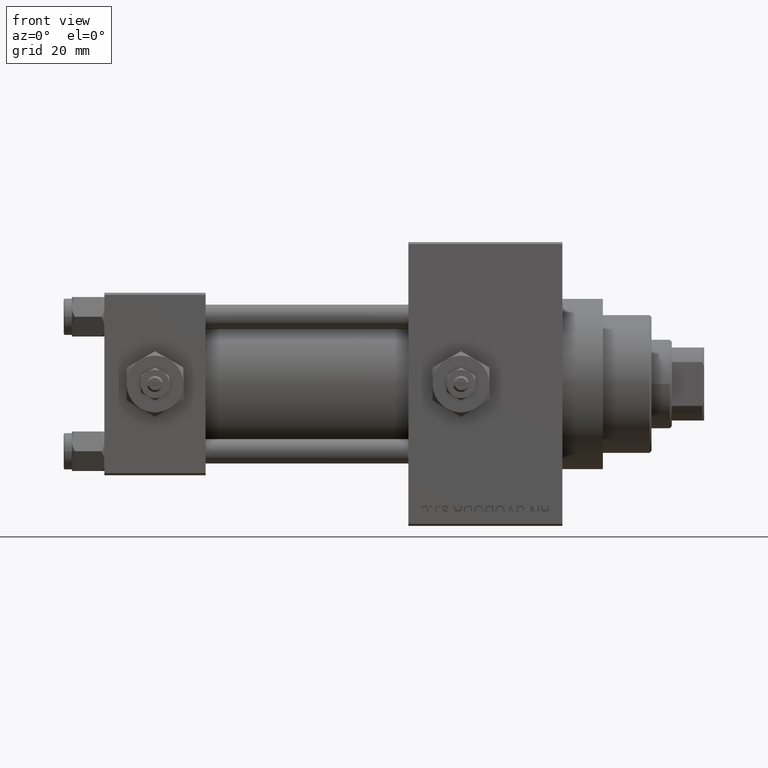
[diagram: clean part render]
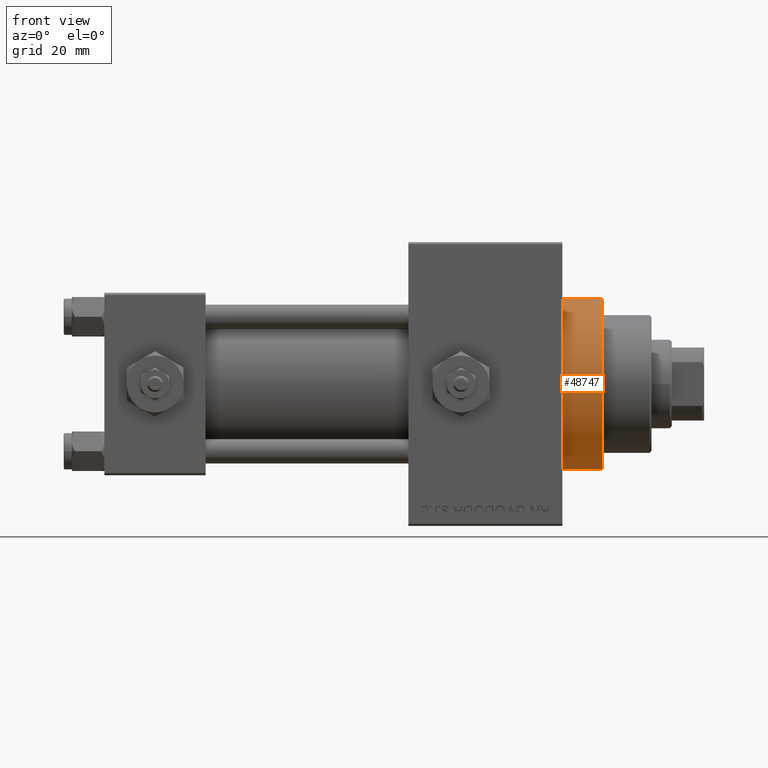
[diagram: same view with one face highlighted and labeled with its STEP entity id]
A machine part, front view. The second image highlights one B-rep face of the part: STEP entity #48747.
In plain terms, the highlighted cylindrical surface (partial cylindrical patch) has radius 21 mm, axis along (-1, -0, -0).
Its self-contained STEP definition (entity closure, byte-faithful):
#843 = ORIENTED_EDGE ( 'NONE', *, *, #10740, .T. ) ;
#4409 = ORIENTED_EDGE ( 'NONE', *, *, #9219, .F. ) ;
#4908 = DIRECTION ( 'NONE',  ( -1.000000000000000000, -0.000000000000000000, -0.000000000000000000 ) ) ;
#5636 = CARTESIAN_POINT ( 'NONE',  ( 113.0000000000000142, 0.000000000000000000, 21.00000000000000000 ) ) ;
#5724 = CARTESIAN_POINT ( 'NONE',  ( 123.0000000000000142, 0.000000000000000000, 21.00000000000000000 ) ) ;
#5762 = DIRECTION ( 'NONE',  ( -1.000000000000000000, -0.000000000000000000, -0.000000000000000000 ) ) ;
#6144 = DIRECTION ( 'NONE',  ( 0.000000000000000000, 0.000000000000000000, -1.000000000000000000 ) ) ;
#7250 = EDGE_CURVE ( 'NONE', #17319, #43465, #48248, .T. ) ;
#7463 = CARTESIAN_POINT ( 'NONE',  ( 123.0000000000000142, 0.000000000000000000, 21.00000000000000000 ) ) ;
#9133 = CARTESIAN_POINT ( 'NONE',  ( 113.0000000000000142, 0.000000000000000000, 0.000000000000000000 ) ) ;
#9219 = EDGE_CURVE ( 'NONE', #26745, #15221, #22150, .T. ) ;
#9230 = CARTESIAN_POINT ( 'NONE',  ( 123.0000000000000142, 0.000000000000000000, 0.000000000000000000 ) ) ;
#10740 = EDGE_CURVE ( 'NONE', #26745, #17319, #16420, .T. ) ;
#12011 = ORIENTED_EDGE ( 'NONE', *, *, #33780, .F. ) ;
#15221 = VERTEX_POINT ( 'NONE', #43473 ) ;
#16133 = EDGE_LOOP ( 'NONE', ( #12011, #4409, #843, #33219 ) ) ;
#16420 = LINE ( 'NONE', #5724, #18252 ) ;
#17182 = CYLINDRICAL_SURFACE ( 'NONE', #26122, 21.00000000000000000 ) ;
#17319 = VERTEX_POINT ( 'NONE', #5636 ) ;
#18143 = DIRECTION ( 'NONE',  ( 1.000000000000000000, 0.000000000000000000, 0.000000000000000000 ) ) ;
#18252 = VECTOR ( 'NONE', #43490, 1000.000000000000000 ) ;
#18627 = CARTESIAN_POINT ( 'NONE',  ( 123.0000000000000142, 0.000000000000000000, 0.000000000000000000 ) ) ;
#20577 = DIRECTION ( 'NONE',  ( 1.000000000000000000, 0.000000000000000000, 0.000000000000000000 ) ) ;
#22150 = CIRCLE ( 'NONE', #26119, 21.00000000000000000 ) ;
#26119 = AXIS2_PLACEMENT_3D ( 'NONE', #18627, #18143, #30065 ) ;
#26122 = AXIS2_PLACEMENT_3D ( 'NONE', #9230, #5762, #28127 ) ;
#26745 = VERTEX_POINT ( 'NONE', #7463 ) ;
#27194 = CARTESIAN_POINT ( 'NONE',  ( 113.0000000000000142, 2.571758278209441661E-15, -21.00000000000000000 ) ) ;
#28127 = DIRECTION ( 'NONE',  ( 0.000000000000000000, 0.000000000000000000, 1.000000000000000000 ) ) ;
#29832 = VECTOR ( 'NONE', #4908, 1000.000000000000000 ) ;
#30065 = DIRECTION ( 'NONE',  ( 0.000000000000000000, 0.000000000000000000, -1.000000000000000000 ) ) ;
#31223 = CARTESIAN_POINT ( 'NONE',  ( 123.0000000000000142, 2.571758278209441661E-15, -21.00000000000000000 ) ) ;
#31707 = LINE ( 'NONE', #31223, #29832 ) ;
#33219 = ORIENTED_EDGE ( 'NONE', *, *, #7250, .T. ) ;
#33780 = EDGE_CURVE ( 'NONE', #15221, #43465, #31707, .T. ) ;
#39796 = FACE_OUTER_BOUND ( 'NONE', #16133, .T. ) ;
#43465 = VERTEX_POINT ( 'NONE', #27194 ) ;
#43473 = CARTESIAN_POINT ( 'NONE',  ( 123.0000000000000142, 2.571758278209441661E-15, -21.00000000000000000 ) ) ;
#43490 = DIRECTION ( 'NONE',  ( -1.000000000000000000, -0.000000000000000000, -0.000000000000000000 ) ) ;
#47456 = AXIS2_PLACEMENT_3D ( 'NONE', #9133, #20577, #6144 ) ;
#48248 = CIRCLE ( 'NONE', #47456, 21.00000000000000000 ) ;
#48747 = ADVANCED_FACE ( 'NONE', ( #39796 ), #17182, .T. ) ;